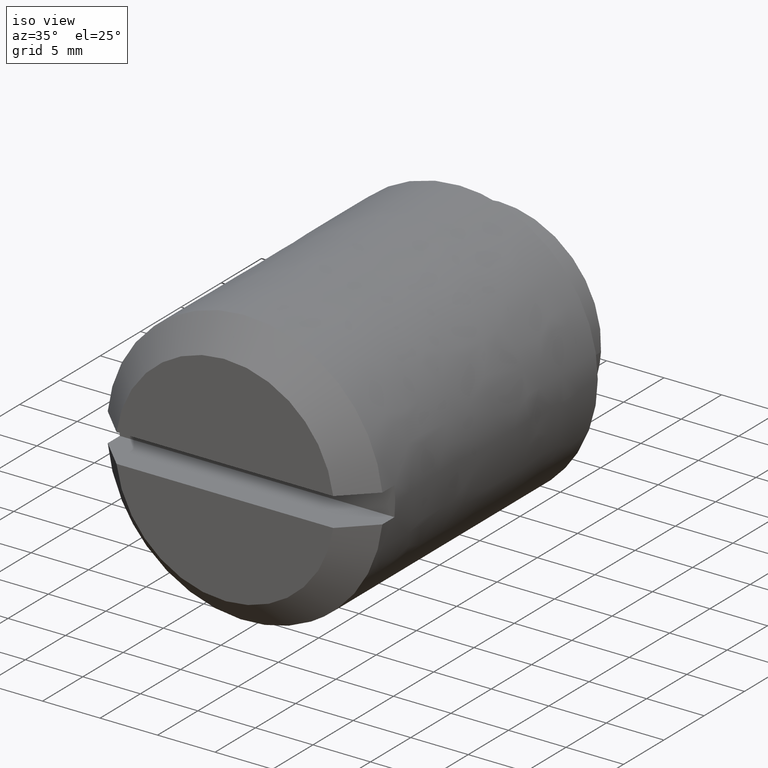
[diagram: clean part render]
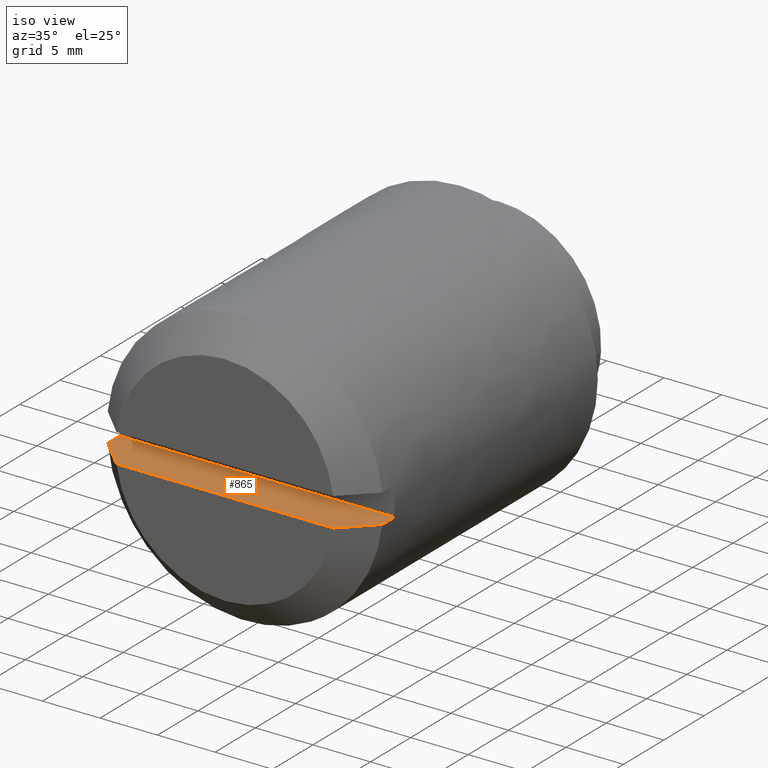
[diagram: same view with one face highlighted and labeled with its STEP entity id]
A machine part, iso view. The second image highlights one B-rep face of the part: STEP entity #865.
In plain terms, the highlighted face is a freeform B-spline surface patch.
Its self-contained STEP definition (entity closure, byte-faithful):
#616=CARTESIAN_POINT('',(11.934718262280001,-37.0,-1.250000000000000));
#617=VERTEX_POINT('',#616);
#647=CARTESIAN_POINT('',(-11.934718262280001,-37.0,-1.249999999999988));
#648=VERTEX_POINT('',#647);
#662=CARTESIAN_POINT('',(-11.934718262280001,-35.500000000000000,-1.249999999999988));
#663=VERTEX_POINT('',#662);
#664=CARTESIAN_POINT('',(-11.934718262280001,-35.500000000000000,-1.249999999999988));
#665=CARTESIAN_POINT('',(-11.934718262280001,-37.0,-1.249999999999988));
#666=QUASI_UNIFORM_CURVE('',1,(#664,#665),.UNSPECIFIED.,.F.,.U.);
#667=EDGE_CURVE('',#663,#648,#666,.T.);
#715=CARTESIAN_POINT('',(11.934718262280001,-35.500000000000000,-1.250000000000000));
#716=VERTEX_POINT('',#715);
#730=CARTESIAN_POINT('',(11.934718262280001,-35.500000000000000,-1.250000000000000));
#731=CARTESIAN_POINT('',(11.934718262280001,-37.0,-1.250000000000000));
#732=QUASI_UNIFORM_CURVE('',1,(#730,#731),.UNSPECIFIED.,.F.,.U.);
#733=EDGE_CURVE('',#716,#617,#732,.T.);
#783=CARTESIAN_POINT('',(11.934718262280001,-35.500000000000000,-1.250000000000000));
#784=CARTESIAN_POINT('',(-11.934718262280001,-35.500000000000000,-1.249999999999988));
#785=QUASI_UNIFORM_CURVE('',1,(#783,#784),.UNSPECIFIED.,.F.,.U.);
#786=EDGE_CURVE('',#716,#663,#785,.T.);
#832=CARTESIAN_POINT('',(-13.126996570418180,-39.699799992247229,-1.250000000000000));
#833=CARTESIAN_POINT('',(13.126997210646360,-39.699799992247229,-1.250000000000000));
#834=CARTESIAN_POINT('',(-13.126996570418180,-35.300199900464413,-1.250000000000000));
#835=CARTESIAN_POINT('',(13.126997210646360,-35.300199900464413,-1.250000000000000));
#836=B_SPLINE_SURFACE_WITH_KNOTS('',1,1,((#832,#834),(#833,#835)),.UNSPECIFIED.,.F.,.F.,.U.,(2,2),(2,2),(0.0,26.253993781064530),(0.0,4.399600091782816),.UNSPECIFIED.);
#837=CARTESIAN_POINT('',(-9.417404100918681,-39.500000000000000,-1.250000000000000));
#838=VERTEX_POINT('',#837);
#839=CARTESIAN_POINT('',(-11.934718262280001,-37.0,-1.249999999999988));
#840=CARTESIAN_POINT('',(-11.096215512164330,-37.833939275329712,-1.249999999999992));
#841=CARTESIAN_POINT('',(-10.257283632019661,-38.667446589331732,-1.249999999999996));
#842=CARTESIAN_POINT('',(-9.417404100918681,-39.500000000000000,-1.250000000000000));
#843=B_SPLINE_CURVE_WITH_KNOTS('',3,(#839,#840,#841,#842),.UNSPECIFIED.,.F.,.U.,(4,4),(0.0,0.109279415963887),.UNSPECIFIED.);
#844=EDGE_CURVE('',#648,#838,#843,.T.);
#845=ORIENTED_EDGE('',*,*,#844,.T.);
#846=CARTESIAN_POINT('',(9.417404100918681,-39.500000000000000,-1.250000000000000));
#847=VERTEX_POINT('',#846);
#848=CARTESIAN_POINT('',(9.417404100918681,-39.500000000000000,-1.250000000000000));
#849=CARTESIAN_POINT('',(-9.417404100918681,-39.500000000000000,-1.250000000000000));
#850=QUASI_UNIFORM_CURVE('',1,(#848,#849),.UNSPECIFIED.,.F.,.U.);
#851=EDGE_CURVE('',#847,#838,#850,.T.);
#852=ORIENTED_EDGE('',*,*,#851,.F.);
#853=CARTESIAN_POINT('',(9.417404100918681,-39.500000000000000,-1.250000000000000));
#854=CARTESIAN_POINT('',(10.257283071186119,-38.667445756196940,-1.250000000000000));
#855=CARTESIAN_POINT('',(11.096215729404530,-37.833939285093649,-1.250000000000000));
#856=CARTESIAN_POINT('',(11.934718262280001,-37.0,-1.250000000000000));
#857=B_SPLINE_CURVE_WITH_KNOTS('',3,(#853,#854,#855,#856),.UNSPECIFIED.,.F.,.U.,(4,4),(0.889901593570560,1.0),.UNSPECIFIED.);
#858=EDGE_CURVE('',#847,#617,#857,.T.);
#859=ORIENTED_EDGE('',*,*,#858,.T.);
#860=ORIENTED_EDGE('',*,*,#733,.F.);
#861=ORIENTED_EDGE('',*,*,#786,.T.);
#862=ORIENTED_EDGE('',*,*,#667,.T.);
#863=EDGE_LOOP('',(#845,#852,#859,#860,#861,#862));
#864=FACE_OUTER_BOUND('',#863,.T.);
#865=ADVANCED_FACE('',(#864),#836,.T.);